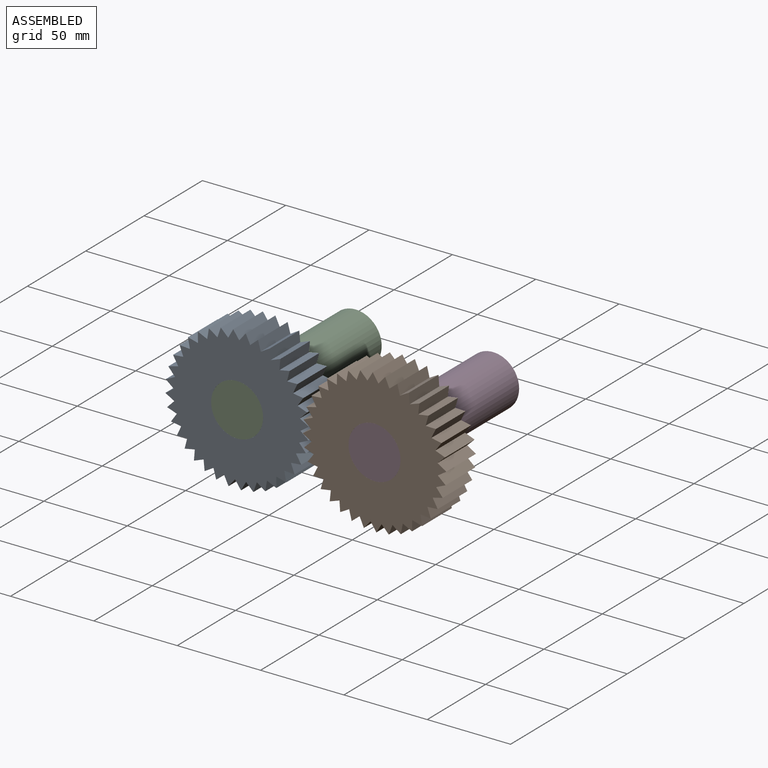
[diagram: assembled view]
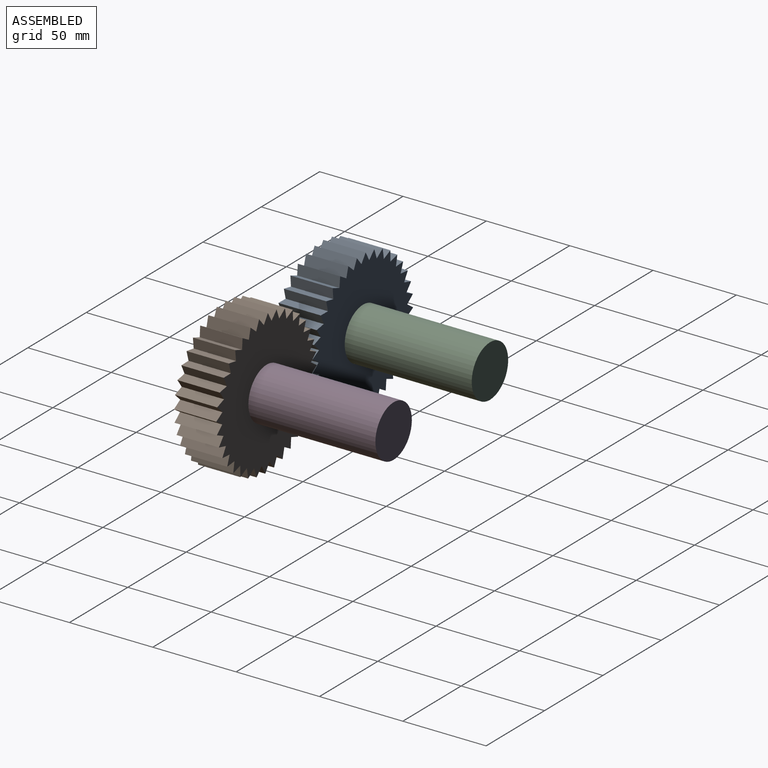
[diagram: assembled view, second angle]
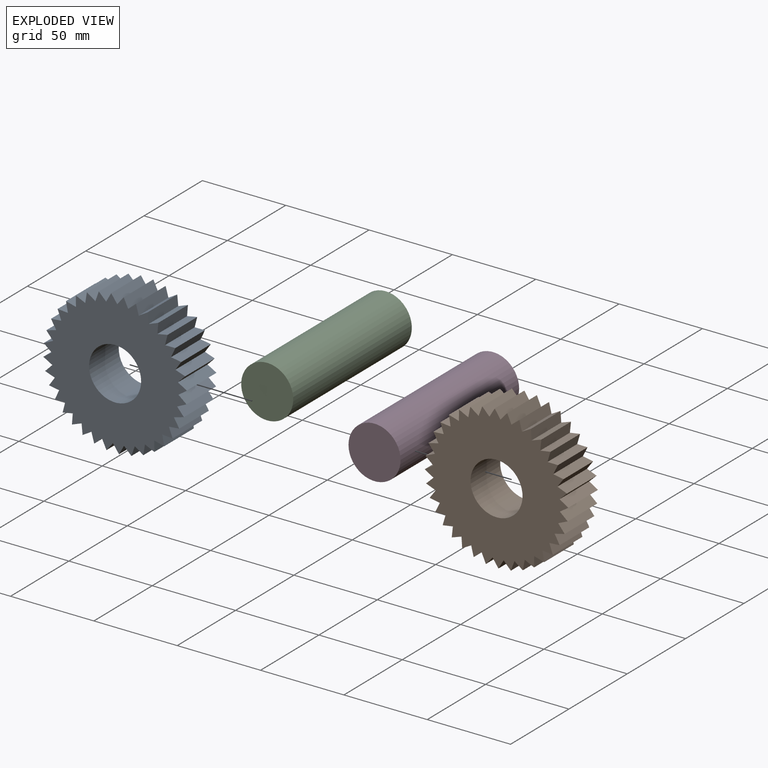
[diagram: exploded view]
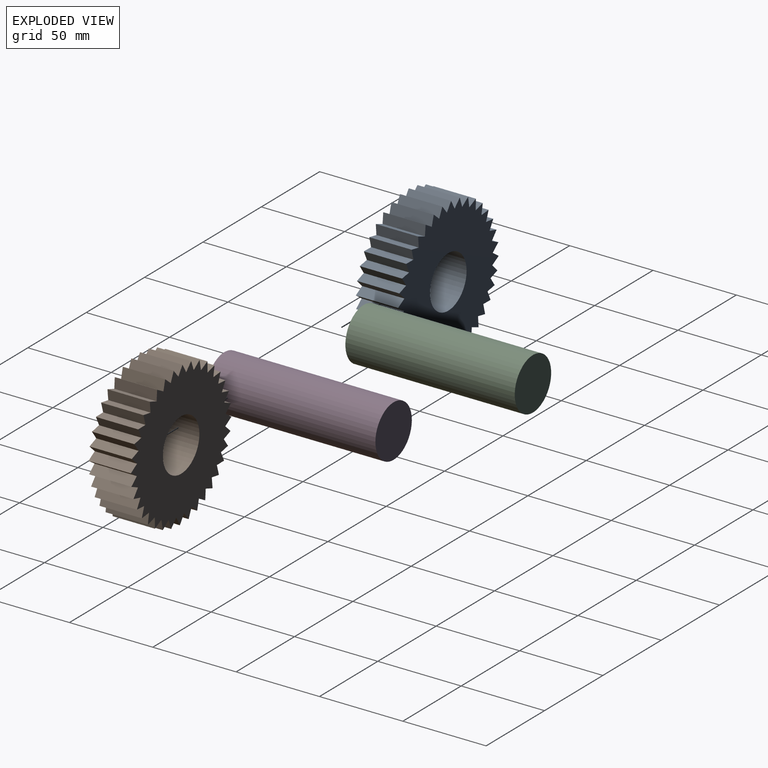
[diagram: exploded view, second angle]
ASSEMBLY  parts=4 mates=2
PART A: 75 faces, bbox 86.3x25.4x86.3 mm
  f0: cylinder r=15.61mm len=31.23mm, axis (0,-1,0), area 2491.9mm2, adj f1,f2
  f1: plane 86.25x86.25mm, normal (0,1,0), area 4382mm2, adj f0,f3,f4,f5,f6,f7,f8,f9
  f2: plane 86.25x86.25mm, normal (0,-1,0), area 4382mm2, adj f0,f3,f4,f5,f6,f7,f8,f9
  f3: plane 25.4x5.22mm, normal (0.84,0,0.54), area 157.2mm2, adj f1,f2,f4,f74
  f4: plane 25.4x5.22mm, normal (-0.84,0,0.54), area 157.2mm2, adj f1,f2,f3,f5
  f5: plane 25.4x4.57mm, normal (0.74,0,0.67), area 157.2mm2, adj f1,f2,f4,f6
  f6: plane 25.4x5.72mm, normal (-0.92,0,0.38), area 157.2mm2, adj f1,f2,f5,f7
  f7: plane 25.4x4.9mm, normal (0.61,0,0.79), area 157.2mm2, adj f1,f2,f6,f8
  f8: plane 25.4x6.04mm, normal (-0.98,0,0.21), area 157.2mm2, adj f1,f2,f7,f9
  f9: plane 25.4x5.48mm, normal (0.46,0,0.89), area 157.2mm2, adj f1,f2,f8,f10
  f10: plane 25.4x6.18mm, normal (-1,0,0.04), area 157.2mm2, adj f1,f2,f9,f11
  f11: plane 25.4x5.9mm, normal (0.3,0,0.95), area 157.2mm2, adj f1,f2,f10,f12
  f12: plane 25.4x6.13mm, normal (-0.99,0,-0.13), area 157.2mm2, adj f1,f2,f11,f13
  f13: plane 25.4x6.13mm, normal (0.13,0,0.99), area 157.2mm2, adj f1,f2,f12,f14
  f14: plane 25.4x5.9mm, normal (-0.95,0,-0.3), area 157.2mm2, adj f1,f2,f13,f15
  f15: plane 25.4x6.18mm, normal (-0.04,0,1), area 157.2mm2, adj f1,f2,f14,f16
  f16: plane 25.4x5.48mm, normal (-0.89,0,-0.46), area 157.2mm2, adj f1,f2,f15,f17
  f17: plane 25.4x6.04mm, normal (-0.21,0,0.98), area 157.2mm2, adj f1,f2,f16,f18
  f18: plane 25.4x4.9mm, normal (-0.79,0,-0.61), area 157.2mm2, adj f1,f2,f17,f19
  f19: plane 25.4x5.72mm, normal (-0.38,0,0.92), area 157.2mm2, adj f1,f2,f18,f20
  f20: plane 25.4x4.57mm, normal (-0.67,0,-0.74), area 157.2mm2, adj f1,f2,f19,f21
  f21: plane 25.4x5.22mm, normal (-0.54,0,0.84), area 157.2mm2, adj f1,f2,f20,f22
  f22: plane 25.4x5.22mm, normal (-0.54,0,-0.84), area 157.2mm2, adj f1,f2,f21,f23
  f23: plane 25.4x4.57mm, normal (-0.67,0,0.74), area 157.2mm2, adj f1,f2,f22,f24
  f24: plane 25.4x5.72mm, normal (-0.38,0,-0.92), area 157.2mm2, adj f1,f2,f23,f25
  f25: plane 25.4x4.9mm, normal (-0.79,0,0.61), area 157.2mm2, adj f1,f2,f24,f26
  f26: plane 25.4x6.04mm, normal (-0.21,0,-0.98), area 157.2mm2, adj f1,f2,f25,f27
  f27: plane 25.4x5.48mm, normal (-0.89,0,0.46), area 157.2mm2, adj f1,f2,f26,f28
  f28: plane 25.4x6.18mm, normal (-0.04,0,-1), area 157.2mm2, adj f1,f2,f27,f29
  f29: plane 25.4x5.9mm, normal (-0.95,0,0.3), area 157.2mm2, adj f1,f2,f28,f30
  f30: plane 25.4x6.13mm, normal (0.13,0,-0.99), area 157.2mm2, adj f1,f2,f29,f31
  f31: plane 25.4x6.13mm, normal (-0.99,0,0.13), area 157.2mm2, adj f1,f2,f30,f32
  f32: plane 25.4x5.9mm, normal (0.3,0,-0.95), area 157.2mm2, adj f1,f2,f31,f33
  f33: plane 25.4x6.18mm, normal (-1,0,-0.04), area 157.2mm2, adj f1,f2,f32,f34
  f34: plane 25.4x5.48mm, normal (0.46,0,-0.89), area 157.2mm2, adj f1,f2,f33,f35
  f35: plane 25.4x6.04mm, normal (-0.98,0,-0.21), area 157.2mm2, adj f1,f2,f34,f36
  f36: plane 25.4x4.9mm, normal (0.61,0,-0.79), area 157.2mm2, adj f1,f2,f35,f37
  f37: plane 25.4x5.72mm, normal (-0.92,0,-0.38), area 157.2mm2, adj f1,f2,f36,f38
  f38: plane 25.4x4.57mm, normal (0.74,0,-0.67), area 157.2mm2, adj f1,f2,f37,f39
  f39: plane 25.4x5.22mm, normal (-0.84,0,-0.54), area 157.2mm2, adj f1,f2,f38,f40
  f40: plane 25.4x5.22mm, normal (0.84,0,-0.54), area 157.2mm2, adj f1,f2,f39,f41
  f41: plane 25.4x4.57mm, normal (-0.74,0,-0.67), area 157.2mm2, adj f1,f2,f40,f42
  f42: plane 25.4x5.72mm, normal (0.92,0,-0.38), area 157.2mm2, adj f1,f2,f41,f43
  f43: plane 25.4x4.9mm, normal (-0.61,0,-0.79), area 157.2mm2, adj f1,f2,f42,f44
  f44: plane 25.4x6.04mm, normal (0.98,0,-0.21), area 157.2mm2, adj f1,f2,f43,f45
  f45: plane 25.4x5.48mm, normal (-0.46,0,-0.89), area 157.2mm2, adj f1,f2,f44,f46
  f46: plane 25.4x6.18mm, normal (1,0,-0.04), area 157.2mm2, adj f1,f2,f45,f47
  f47: plane 25.4x5.9mm, normal (-0.3,0,-0.95), area 157.2mm2, adj f1,f2,f46,f48
  f48: plane 25.4x6.13mm, normal (0.99,0,0.13), area 157.2mm2, adj f1,f2,f47,f49
  f49: plane 25.4x6.13mm, normal (-0.13,0,-0.99), area 157.2mm2, adj f1,f2,f48,f50
  f50: plane 25.4x5.9mm, normal (0.95,0,0.3), area 157.2mm2, adj f1,f2,f49,f51
  f51: plane 25.4x6.18mm, normal (0.04,0,-1), area 157.2mm2, adj f1,f2,f50,f52
  f52: plane 25.4x5.48mm, normal (0.89,0,0.46), area 157.2mm2, adj f1,f2,f51,f53
  f53: plane 25.4x6.04mm, normal (0.21,0,-0.98), area 157.2mm2, adj f1,f2,f52,f54
  f54: plane 25.4x4.9mm, normal (0.79,0,0.61), area 157.2mm2, adj f1,f2,f53,f55
  f55: plane 25.4x5.72mm, normal (0.38,0,-0.92), area 157.2mm2, adj f1,f2,f54,f56
  f56: plane 25.4x4.57mm, normal (0.67,0,0.74), area 157.2mm2, adj f1,f2,f55,f57
  f57: plane 25.4x5.22mm, normal (0.54,0,-0.84), area 157.2mm2, adj f1,f2,f56,f58
  f58: plane 25.4x5.22mm, normal (0.54,0,0.84), area 157.2mm2, adj f1,f2,f57,f59
  f59: plane 25.4x4.57mm, normal (0.67,0,-0.74), area 157.2mm2, adj f1,f2,f58,f60
  f60: plane 25.4x5.72mm, normal (0.38,0,0.92), area 157.2mm2, adj f1,f2,f59,f61
  f61: plane 25.4x4.9mm, normal (0.79,0,-0.61), area 157.2mm2, adj f1,f2,f60,f62
  f62: plane 25.4x6.04mm, normal (0.21,0,0.98), area 157.2mm2, adj f1,f2,f61,f63
  f63: plane 25.4x5.48mm, normal (0.89,0,-0.46), area 157.2mm2, adj f1,f2,f62,f64
  f64: plane 25.4x6.18mm, normal (0.04,0,1), area 157.2mm2, adj f1,f2,f63,f65
  f65: plane 25.4x5.9mm, normal (0.95,0,-0.3), area 157.2mm2, adj f1,f2,f64,f66
  f66: plane 25.4x6.13mm, normal (-0.13,0,0.99), area 157.2mm2, adj f1,f2,f65,f67
  f67: plane 25.4x6.13mm, normal (0.99,0,-0.13), area 157.2mm2, adj f1,f2,f66,f68
  f68: plane 25.4x5.9mm, normal (-0.3,0,0.95), area 157.2mm2, adj f1,f2,f67,f69
  f69: plane 25.4x6.18mm, normal (1,0,0.04), area 157.2mm2, adj f1,f2,f68,f70
  f70: plane 25.4x5.48mm, normal (-0.46,0,0.89), area 157.2mm2, adj f1,f2,f69,f71
  f71: plane 25.4x6.04mm, normal (0.98,0,0.21), area 157.2mm2, adj f1,f2,f70,f72
  f72: plane 25.4x4.9mm, normal (-0.61,0,0.79), area 157.2mm2, adj f1,f2,f71,f73
  f73: plane 25.4x5.72mm, normal (0.92,0,0.38), area 157.2mm2, adj f1,f2,f72,f74
  f74: plane 25.4x4.57mm, normal (-0.74,0,0.67), area 157.2mm2, adj f1,f2,f3,f73
PART B: same geometry as A
PART C: 3 faces, bbox 31.2x101.6x31.2 mm
  f0: cylinder r=15.61mm len=101.6mm, axis (0,1,0), area 9967.4mm2, adj f1,f2
  f1: plane 31.23x31.23mm, normal (0,-1,0), area 765.9mm2, adj f0
  f2: plane 31.23x31.23mm, normal (0,1,0), area 765.9mm2, adj f0
PART D: same geometry as C
PLACE A rot(axis=(0,-1,0),63.1deg) t=(-24.86,9.84,-1.48)mm
PLACE B rot(axis=(0,1,0),178.6deg) t=(57.62,9.8,-2.51)mm
PLACE C t=(-24.86,9.84,-1.48)mm fixed
PLACE D rot(axis=(0,1,0),115.4deg) t=(57.62,9.8,-2.51)mm
MATE revolute A.f0 <-> C.f0  axis (0,-1,0) through (-24.86,-91.76,-1.48)mm
MATE revolute B.f0 <-> D.f0  axis (0,-1,0) through (57.62,-91.8,-2.51)mm
